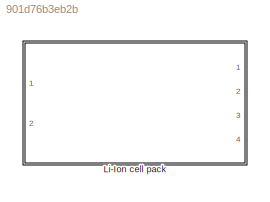
MODEL slx_901d76b3eb2b
KIND library
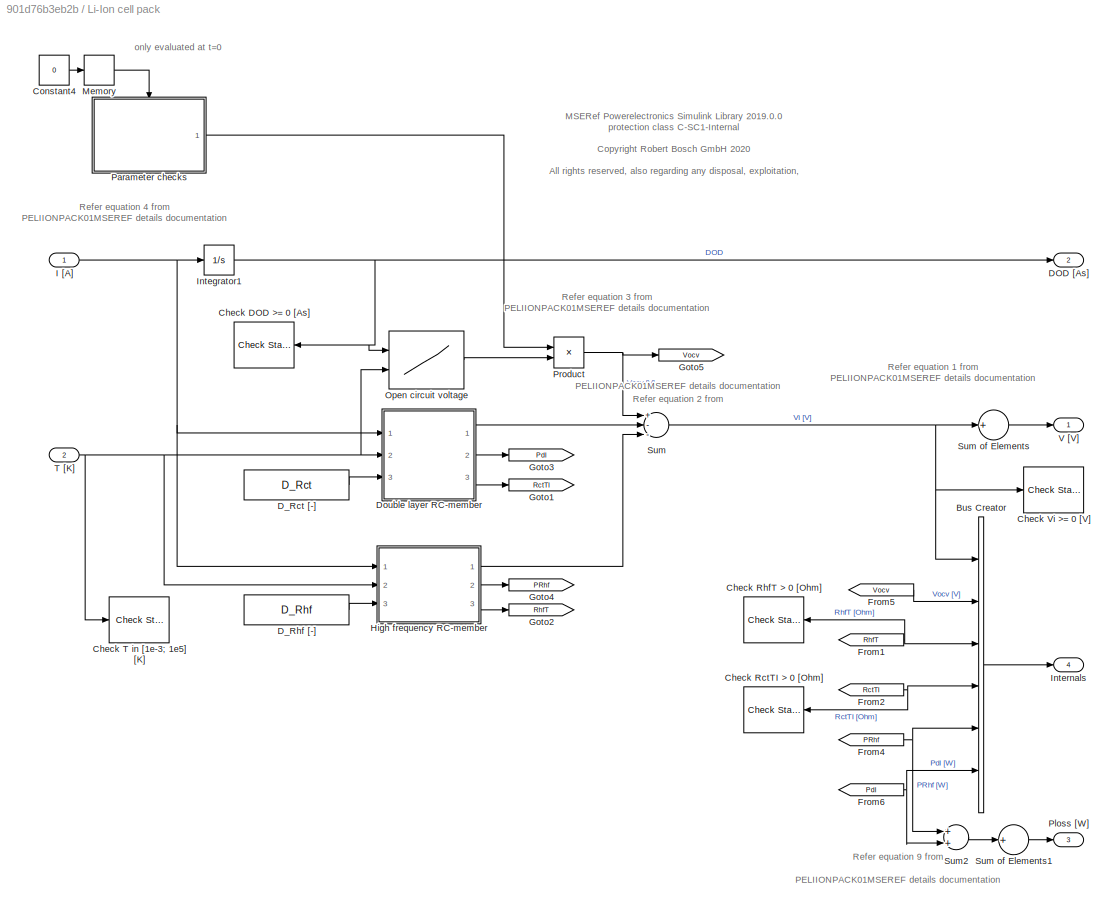
BLOCK [SubSystem] Li-Ion cell pack
  AttributesFormatString = <%<Tag>>
  Ports = [2, 4]
  RequestExecContextInheritance = off
  Tag = PELIIONPACK01MSEREF
BLOCK [BusCreator] Li-Ion cell pack/Bus Creator
  DisplayOption = bar
  Inputs = 6
  Ports = [6, 1]
BLOCK [Reference] Li-Ion cell pack/Check DOD >= 0 [As]  REF=simulink/Model
Verification/Check Static 
Lower Bound
  Description = 0 <= u
  Ports = [1]
  SourceBlock = simulink/Model\nVerification/Check Static \nLower Bound
  SourceType = Checks_SMin
  callback = errordlg('Output depth of discharge `DOD` has to be greater or equal to zero [As].')
  enabled = on
  export = off
  icon = graphic
  min = 0
  min_included = on
  stopWhenAssertionFail = on
BLOCK [Reference] Li-Ion cell pack/Check RctTI > 0 [Ohm]  REF=simulink/Model
Verification/Check Static 
Lower Bound
  Description = 0 <= u
  Ports = [1]
  SourceBlock = simulink/Model\nVerification/Check Static \nLower Bound
  SourceType = Checks_SMin
  callback = errordlg('Internal variable `RctTI` must have elements greater than zero [Ohm]. Possible reasons: Input port 3 `DeviVec`is unconnected, grounded or RhfT,i resp. RctTI,i is equal to zero.')
  enabled = on
  export = off
  icon = graphic
  min = 0
  min_included = on
  stopWhenAssertionFail = on
BLOCK [Reference] Li-Ion cell pack/Check RhfT > 0 [Ohm]  REF=simulink/Model
Verification/Check Static 
Lower Bound
  Description = 0 <= u
  Ports = [1]
  SourceBlock = simulink/Model\nVerification/Check Static \nLower Bound
  SourceType = Checks_SMin
  callback = errordlg('Internal variable `RhfT` must have elements greater than zero [Ohm]. Possible reasons: Input port 3 `DeviVec`is unconnected, grounded or RhfT,i resp. RctTI,i is equal to zero.')
  enabled = on
  export = off
  icon = graphic
  min = 0
  min_included = on
  stopWhenAssertionFail = on
BLOCK [Reference] Li-Ion cell pack/Check T in [1e-3; 1e5] [K]  REF=simulink/Model
Verification/Check 
Static Range
  Description = 1e-3 <= u <= 1e5
  Ports = [1]
  SourceBlock = simulink/Model\nVerification/Check \nStatic Range
  SourceType = Checks_SRange
  callback = errordlg('Input temperature `T` outside of range [1e-3; 1e5] [K].')
  enabled = on
  export = off
  icon = graphic
  max = 1e5
  max_included = on
  min = 1e-3
  min_included = on
  stopWhenAssertionFail = on
BLOCK [Reference] Li-Ion cell pack/Check Vi >= 0 [V]  REF=simulink/Model
Verification/Check Static 
Lower Bound
  Description = 0 <= u
  Ports = [1]
  SourceBlock = simulink/Model\nVerification/Check Static \nLower Bound
  SourceType = Checks_SMin
  callback = errordlg('Terminal voltage `Vi` has to be greater or equal to zero [V].')
  enabled = on
  export = off
  icon = graphic
  min = 0
  min_included = on
  stopWhenAssertionFail = on
BLOCK [Constant] Li-Ion cell pack/Constant4
  Value = 0
BLOCK [Outport] Li-Ion cell pack/DOD [As]
  IconDisplay = Port number
  Port = 2
BLOCK [Constant] Li-Ion cell pack/D_Rct [-]
  Value = D_Rct
BLOCK [Constant] Li-Ion cell pack/D_Rhf [-]
  Value = D_Rhf
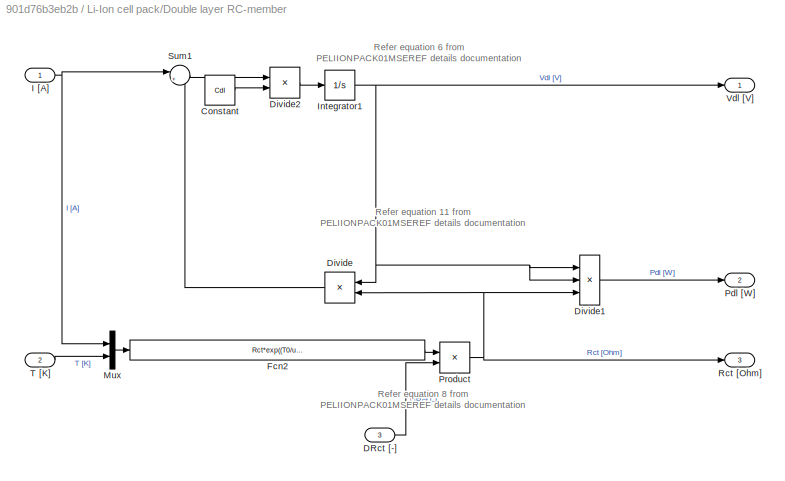
BLOCK [SubSystem] Li-Ion cell pack/Double layer RC-member
  Ports = [3, 3]
  RequestExecContextInheritance = off
BLOCK [Constant] Li-Ion cell pack/Double layer RC-member/Constant
  Value = Cdl
BLOCK [Inport] Li-Ion cell pack/Double layer RC-member/DRct [-]
  IconDisplay = Port number
  Port = 3
BLOCK [Product] Li-Ion cell pack/Double layer RC-member/Divide
  InputSameDT = off
  Inputs = */
  OutDataTypeStr = Inherit: Inherit via internal rule
  Ports = [2, 1]
  RndMeth = Floor
  SaturateOnIntegerOverflow = off
BLOCK [Product] Li-Ion cell pack/Double layer RC-member/Divide1
  InputSameDT = off
  Inputs = **/
  OutDataTypeStr = Inherit: Inherit via internal rule
  Ports = [3, 1]
  RndMeth = Floor
  SaturateOnIntegerOverflow = off
BLOCK [Product] Li-Ion cell pack/Double layer RC-member/Divide2
  InputSameDT = off
  Inputs = */
  OutDataTypeStr = Inherit: Inherit via internal rule
  Ports = [2, 1]
  RndMeth = Floor
  SaturateOnIntegerOverflow = off
BLOCK [Fcn] Li-Ion cell pack/Double layer RC-member/Fcn2
  Expr = Rct*exp((T0/u(2))-(T0/293.15))*(1+rho*(1+(u(1)/(I0))^2)^(-0.5))
BLOCK [Inport] Li-Ion cell pack/Double layer RC-member/I [A]
  IconDisplay = Port number
BLOCK [Integrator] Li-Ion cell pack/Double layer RC-member/Integrator1
  InitialCondition = Vdlinit
  Ports = [1, 1]
BLOCK [Mux] Li-Ion cell pack/Double layer RC-member/Mux
  DisplayOption = bar
  Inputs = 2
  Ports = [2, 1]
BLOCK [Outport] Li-Ion cell pack/Double layer RC-member/Pdl [W]
  IconDisplay = Port number
  Port = 2
BLOCK [Product] Li-Ion cell pack/Double layer RC-member/Product
  InputSameDT = off
  OutDataTypeStr = Inherit: Inherit via internal rule
  Ports = [2, 1]
  RndMeth = Floor
  SaturateOnIntegerOverflow = off
BLOCK [Outport] Li-Ion cell pack/Double layer RC-member/Rct [Ohm]
  IconDisplay = Port number
  Port = 3
BLOCK [Sum] Li-Ion cell pack/Double layer RC-member/Sum1
  IconShape = round
  InputSameDT = off
  Inputs = |+-
  OutDataTypeStr = Inherit: Inherit via internal rule
  Ports = [2, 1]
  SaturateOnIntegerOverflow = off
BLOCK [Inport] Li-Ion cell pack/Double layer RC-member/T [K]
  IconDisplay = Port number
  Port = 2
BLOCK [Outport] Li-Ion cell pack/Double layer RC-member/Vdl [V]
  IconDisplay = Port number
BLOCK [From] Li-Ion cell pack/From1
  CloseFcn = tagdialog Close
  GotoTag = RhfT
BLOCK [From] Li-Ion cell pack/From2
  CloseFcn = tagdialog Close
  GotoTag = RctTI
BLOCK [From] Li-Ion cell pack/From4
  CloseFcn = tagdialog Close
  GotoTag = PRhf
BLOCK [From] Li-Ion cell pack/From5
  CloseFcn = tagdialog Close
  GotoTag = Vocv
BLOCK [From] Li-Ion cell pack/From6
  CloseFcn = tagdialog Close
  GotoTag = Pdl
BLOCK [Goto] Li-Ion cell pack/Goto1
  GotoTag = RctTI
BLOCK [Goto] Li-Ion cell pack/Goto2
  GotoTag = RhfT
BLOCK [Goto] Li-Ion cell pack/Goto3
  GotoTag = Pdl
BLOCK [Goto] Li-Ion cell pack/Goto4
  GotoTag = PRhf
BLOCK [Goto] Li-Ion cell pack/Goto5
  GotoTag = Vocv
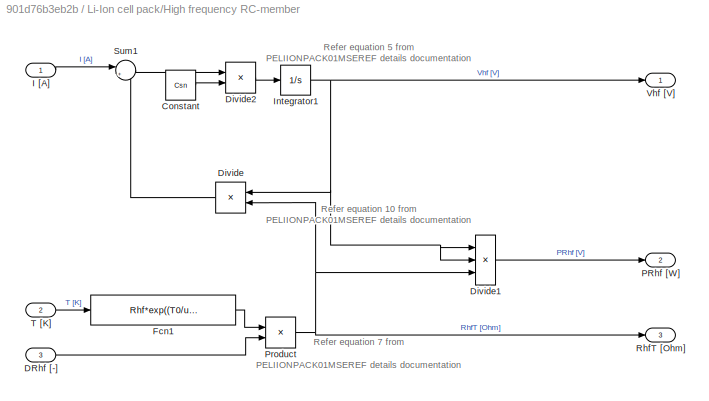
BLOCK [SubSystem] Li-Ion cell pack/High frequency RC-member
  Ports = [3, 3]
  RequestExecContextInheritance = off
BLOCK [Constant] Li-Ion cell pack/High frequency RC-member/Constant
  Value = Csn
BLOCK [Inport] Li-Ion cell pack/High frequency RC-member/DRhf [-]
  IconDisplay = Port number
  Port = 3
BLOCK [Product] Li-Ion cell pack/High frequency RC-member/Divide
  InputSameDT = off
  Inputs = */
  OutDataTypeStr = Inherit: Inherit via internal rule
  Ports = [2, 1]
  RndMeth = Floor
  SaturateOnIntegerOverflow = off
BLOCK [Product] Li-Ion cell pack/High frequency RC-member/Divide1
  InputSameDT = off
  Inputs = **/
  OutDataTypeStr = Inherit: Inherit via internal rule
  Ports = [3, 1]
  RndMeth = Floor
  SaturateOnIntegerOverflow = off
BLOCK [Product] Li-Ion cell pack/High frequency RC-member/Divide2
  InputSameDT = off
  Inputs = */
  OutDataTypeStr = Inherit: Inherit via internal rule
  Ports = [2, 1]
  RndMeth = Floor
  SaturateOnIntegerOverflow = off
BLOCK [Fcn] Li-Ion cell pack/High frequency RC-member/Fcn1
  Expr = Rhf*exp((T0/u(1))-(T0/293.15))
BLOCK [Inport] Li-Ion cell pack/High frequency RC-member/I [A]
  IconDisplay = Port number
BLOCK [Integrator] Li-Ion cell pack/High frequency RC-member/Integrator1
  InitialCondition = VRhfinit
  Ports = [1, 1]
BLOCK [Outport] Li-Ion cell pack/High frequency RC-member/PRhf [W]
  IconDisplay = Port number
  Port = 2
BLOCK [Product] Li-Ion cell pack/High frequency RC-member/Product
  InputSameDT = off
  OutDataTypeStr = Inherit: Inherit via internal rule
  Ports = [2, 1]
  RndMeth = Floor
  SaturateOnIntegerOverflow = off
BLOCK [Outport] Li-Ion cell pack/High frequency RC-member/RhfT [Ohm]
  IconDisplay = Port number
  Port = 3
BLOCK [Sum] Li-Ion cell pack/High frequency RC-member/Sum1
  IconShape = round
  InputSameDT = off
  Inputs = |+-
  OutDataTypeStr = Inherit: Inherit via internal rule
  Ports = [2, 1]
  SaturateOnIntegerOverflow = off
BLOCK [Inport] Li-Ion cell pack/High frequency RC-member/T [K]
  IconDisplay = Port number
  Port = 2
BLOCK [Outport] Li-Ion cell pack/High frequency RC-member/Vhf [V]
  IconDisplay = Port number
BLOCK [Inport] Li-Ion cell pack/I [A]
  IconDisplay = Port number
BLOCK [Integrator] Li-Ion cell pack/Integrator1
  InitialCondition = DODinit
  Ports = [1, 1]
BLOCK [Outport] Li-Ion cell pack/Internals
  IconDisplay = Port number
  Port = 4
BLOCK [Memory] Li-Ion cell pack/Memory
  X0 = 1
BLOCK [Lookup2D] Li-Ion cell pack/Open circuit voltage
  ColumnIndex = Ttab
  InputSameDT = off
  LookUpMeth = Interpolation-Use End Values
  RowIndex = DODtab
  SaturateOnIntegerOverflow = off
  Table = Vocvtab
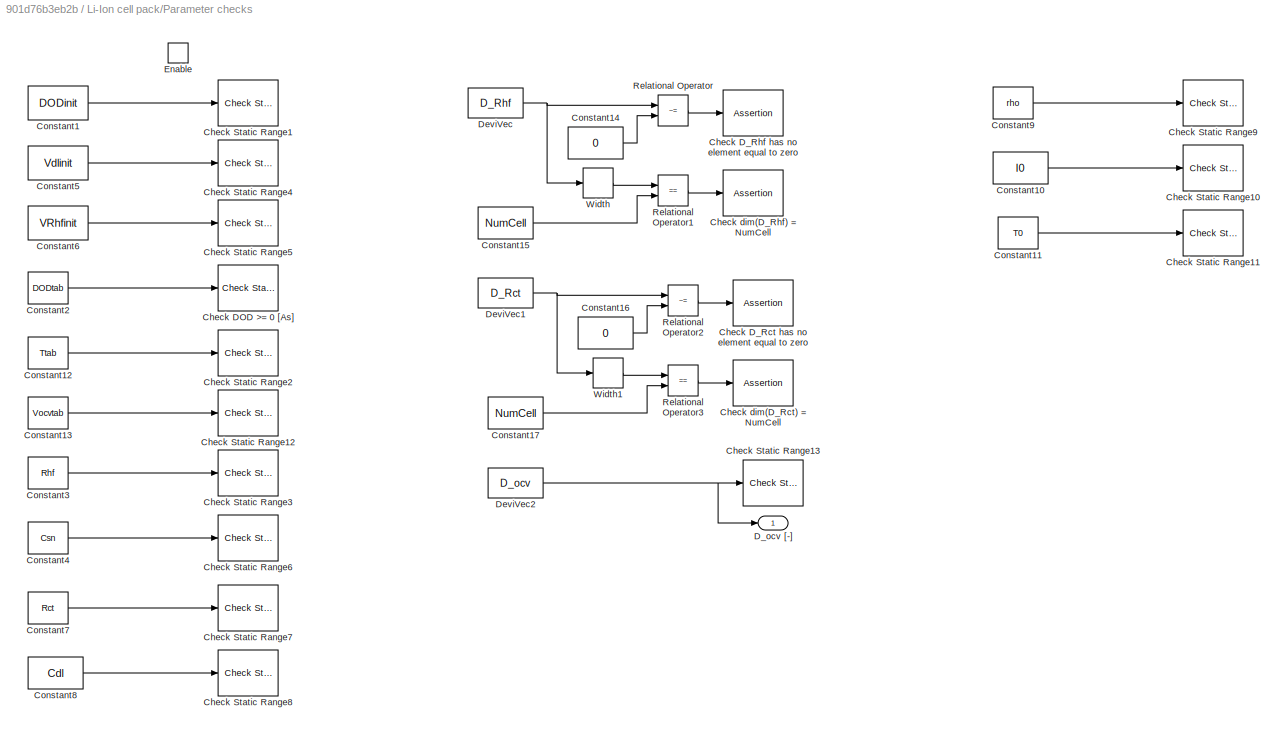
BLOCK [SubSystem] Li-Ion cell pack/Parameter checks
  Ports = [0, 1, 1]
  RequestExecContextInheritance = off
BLOCK [Reference] Li-Ion cell pack/Parameter checks/Check DOD >= 0 [As]  REF=simulink/Model
Verification/Check Static 
Lower Bound
  Description = 0 <= u
  Ports = [1]
  SourceBlock = simulink/Model\nVerification/Check Static \nLower Bound
  SourceType = Checks_SMin
  callback = errordlg('Parameter Vocv table DOD-axis `DODtab` must have all elements greater or equal to zero [As].')
  enabled = on
  export = off
  icon = graphic
  min = 0
  min_included = on
  stopWhenAssertionFail = on
BLOCK [Assertion] Li-Ion cell pack/Parameter checks/Check D_Rct has no element equal to zero
  AssertionFailFcn = errordlg('Parameter `Rct deviation vector` R_ct has elements equal to 0.')
BLOCK [Assertion] Li-Ion cell pack/Parameter checks/Check D_Rhf has no element equal to zero
  AssertionFailFcn = errordlg('Parameter `Rhf deviation vector` R_hf has elements equal to 0.')
BLOCK [Reference] Li-Ion cell pack/Parameter checks/Check Static Range1  REF=simulink/Model
Verification/Check 
Static Range
  Description = 0 <= u <= 1e5
  Ports = [1]
  SourceBlock = simulink/Model\nVerification/Check \nStatic Range
  SourceType = Checks_SRange
  callback = errordlg('Parameter `Initial depth of discharge` DODinit outside boundary [0, 1e5] As.')
  enabled = on
  export = off
  icon = graphic
  max = 1e5
  max_included = on
  min = 0
  min_included = on
  stopWhenAssertionFail = on
BLOCK [Reference] Li-Ion cell pack/Parameter checks/Check Static Range10  REF=simulink/Model
Verification/Check 
Static Range
  Description = 0 <= u <= 1e9
  Ports = [1]
  SourceBlock = simulink/Model\nVerification/Check \nStatic Range
  SourceType = Checks_SRange
  callback = errordlg('Parameter `Scale factor for current dependency` I0 outside boundary ]0, 1e9] A.')
  enabled = on
  export = off
  icon = graphic
  max = 1e9
  max_included = on
  min = 0
  min_included = on
  stopWhenAssertionFail = on
BLOCK [Reference] Li-Ion cell pack/Parameter checks/Check Static Range11  REF=simulink/Model
Verification/Check 
Static Range
  Description = 0 <= u <= 1e9
  Ports = [1]
  SourceBlock = simulink/Model\nVerification/Check \nStatic Range
  SourceType = Checks_SRange
  callback = errordlg('Parameter `Scale factor for temperature dependency` T0 outside boundary [0, 1e9] K.')
  enabled = on
  export = off
  icon = graphic
  max = 1e9
  max_included = on
  min = 0
  min_included = on
  stopWhenAssertionFail = on
BLOCK [Reference] Li-Ion cell pack/Parameter checks/Check Static Range12  REF=simulink/Model
Verification/Check 
Static Range
  Description = 0 <= u <= 1e9
  Ports = [1]
  SourceBlock = simulink/Model\nVerification/Check \nStatic Range
  SourceType = Checks_SRange
  callback = errordlg('Parameter `Vocv table` Vocvtab has elements outside boundary [0, 1e9] K.')
  enabled = on
  export = off
  icon = graphic
  max = 1e9
  max_included = on
  min = 0
  min_included = on
  stopWhenAssertionFail = on
BLOCK [Reference] Li-Ion cell pack/Parameter checks/Check Static Range13  REF=simulink/Model
Verification/Check 
Static Range
  Description = 0 <= u <= 1e9
  Ports = [1]
  SourceBlock = simulink/Model\nVerification/Check \nStatic Range
  SourceType = Checks_SRange
  callback = errordlg('Parameter `Vocv deviation vector` D_ocv not in the range [0, 1e9].')
  enabled = on
  export = off
  icon = graphic
  max = 1e9
  max_included = on
  min = 0
  min_included = on
  stopWhenAssertionFail = on
BLOCK [Reference] Li-Ion cell pack/Parameter checks/Check Static Range2  REF=simulink/Model
Verification/Check 
Static Range
  Description = 0 < u <= 1e9
  Ports = [1]
  SourceBlock = simulink/Model\nVerification/Check \nStatic Range
  SourceType = Checks_SRange
  callback = errordlg('Parameter `Vocv table T-axis` Ttab has elements outside boundary ]0, 1e9] K.')
  enabled = on
  export = off
  icon = graphic
  max = 1e9
  max_included = on
  min = 0
  min_included = off
  stopWhenAssertionFail = on
BLOCK [Reference] Li-Ion cell pack/Parameter checks/Check Static Range3  REF=simulink/Model
Verification/Check 
Static Range
  Description = 0 < u <= 1e9
  Ports = [1]
  SourceBlock = simulink/Model\nVerification/Check \nStatic Range
  SourceType = Checks_SRange
  callback = errordlg('Parameter `High frequency resistance` Rhf outside boundary ]0, 1e9] Ohm.')
  enabled = on
  export = off
  icon = graphic
  max = 1e9
  max_included = on
  min = 0
  min_included = off
  stopWhenAssertionFail = on
BLOCK [Reference] Li-Ion cell pack/Parameter checks/Check Static Range4  REF=simulink/Model
Verification/Check 
Static Range
  Description = -1e9 <= u <= 1e9
  Ports = [1]
  SourceBlock = simulink/Model\nVerification/Check \nStatic Range
  SourceType = Checks_SRange
  callback = errordlg('Parameter `Initial double layer voltage` Vdlinit outside boundary [-1e9, 1e9] V.')
  enabled = on
  export = off
  icon = graphic
  max = 1e9
  max_included = on
  min = -1e9
  min_included = on
  stopWhenAssertionFail = on
BLOCK [Reference] Li-Ion cell pack/Parameter checks/Check Static Range5  REF=simulink/Model
Verification/Check 
Static Range
  Description = -1e9 <= u <= 1e9
  Ports = [1]
  SourceBlock = simulink/Model\nVerification/Check \nStatic Range
  SourceType = Checks_SRange
  callback = errordlg('Parameter `Initial high frequency resistor voltage` VRhfinit outside boundary [-1e9, 1e9] V.')
  enabled = on
  export = off
  icon = graphic
  max = 1e9
  max_included = on
  min = -1e9
  min_included = on
  stopWhenAssertionFail = on
BLOCK [Reference] Li-Ion cell pack/Parameter checks/Check Static Range6  REF=simulink/Model
Verification/Check 
Static Range
  Description = 0 < u <= 1e9
  Ports = [1]
  SourceBlock = simulink/Model\nVerification/Check \nStatic Range
  SourceType = Checks_SRange
  callback = errordlg('Parameter `Snubber capacitance` Csn outside boundary ]0, 1e9] F.')
  enabled = on
  export = off
  icon = graphic
  max = 1e9
  max_included = on
  min = 0
  min_included = off
  stopWhenAssertionFail = on
BLOCK [Reference] Li-Ion cell pack/Parameter checks/Check Static Range7  REF=simulink/Model
Verification/Check 
Static Range
  Description = 0 < u <= 1e9
  Ports = [1]
  SourceBlock = simulink/Model\nVerification/Check \nStatic Range
  SourceType = Checks_SRange
  callback = errordlg('Parameter `Charge transfer resistance` Rct outside boundary ]0, 1e9] Ohm.')
  enabled = on
  export = off
  icon = graphic
  max = 1e9
  max_included = on
  min = 0
  min_included = off
  stopWhenAssertionFail = on
BLOCK [Reference] Li-Ion cell pack/Parameter checks/Check Static Range8  REF=simulink/Model
Verification/Check 
Static Range
  Description = 0 < u <= 1e9
  Ports = [1]
  SourceBlock = simulink/Model\nVerification/Check \nStatic Range
  SourceType = Checks_SRange
  callback = errordlg('Parameter `Double layer capacitance` Cdl outside boundary ]0, 1e9] F.')
  enabled = on
  export = off
  icon = graphic
  max = 1e9
  max_included = on
  min = 0
  min_included = off
  stopWhenAssertionFail = on
BLOCK [Reference] Li-Ion cell pack/Parameter checks/Check Static Range9  REF=simulink/Model
Verification/Check 
Static Range
  Description = 0 <= u <= 1e9
  Ports = [1]
  SourceBlock = simulink/Model\nVerification/Check \nStatic Range
  SourceType = Checks_SRange
  callback = errordlg('Parameter `Weighting factor for current dependency` rho outside boundary [0, 1e9] .')
  enabled = on
  export = off
  icon = graphic
  max = 1e9
  max_included = on
  min = 0
  min_included = on
  stopWhenAssertionFail = on
BLOCK [Assertion] Li-Ion cell pack/Parameter checks/Check dim(D_Rct) = NumCell
  AssertionFailFcn = errordlg('Parameter `Rhf deviation vector` D_Rct has a dimension not equal to NumCell.')
BLOCK [Assertion] Li-Ion cell pack/Parameter checks/Check dim(D_Rhf) = NumCell
  AssertionFailFcn = errordlg('Parameter `Rhf deviation vector` D_Rhf has a dimension not equal to NumCell.')
BLOCK [Constant] Li-Ion cell pack/Parameter checks/Constant1
  Value = DODinit
BLOCK [Constant] Li-Ion cell pack/Parameter checks/Constant10
  Value = I0
BLOCK [Constant] Li-Ion cell pack/Parameter checks/Constant11
  Value = T0
BLOCK [Constant] Li-Ion cell pack/Parameter checks/Constant12
  Value = Ttab
BLOCK [Constant] Li-Ion cell pack/Parameter checks/Constant13
  Value = Vocvtab
BLOCK [Constant] Li-Ion cell pack/Parameter checks/Constant14
  Value = 0
BLOCK [Constant] Li-Ion cell pack/Parameter checks/Constant15
  Value = NumCell
BLOCK [Constant] Li-Ion cell pack/Parameter checks/Constant16
  Value = 0
BLOCK [Constant] Li-Ion cell pack/Parameter checks/Constant17
  Value = NumCell
BLOCK [Constant] Li-Ion cell pack/Parameter checks/Constant2
  Value = DODtab
BLOCK [Constant] Li-Ion cell pack/Parameter checks/Constant3
  Value = Rhf
BLOCK [Constant] Li-Ion cell pack/Parameter checks/Constant4
  Value = Csn
BLOCK [Constant] Li-Ion cell pack/Parameter checks/Constant5
  Value = Vdlinit
BLOCK [Constant] Li-Ion cell pack/Parameter checks/Constant6
  Value = VRhfinit
BLOCK [Constant] Li-Ion cell pack/Parameter checks/Constant7
  Value = Rct
BLOCK [Constant] Li-Ion cell pack/Parameter checks/Constant8
  Value = Cdl
BLOCK [Constant] Li-Ion cell pack/Parameter checks/Constant9
  Value = rho
BLOCK [Outport] Li-Ion cell pack/Parameter checks/D_ocv [-]
  IconDisplay = Port number
BLOCK [Constant] Li-Ion cell pack/Parameter checks/DeviVec
  Value = D_Rhf
BLOCK [Constant] Li-Ion cell pack/Parameter checks/DeviVec1
  Value = D_Rct
BLOCK [Constant] Li-Ion cell pack/Parameter checks/DeviVec2
  Value = D_ocv
BLOCK [EnablePort] Li-Ion cell pack/Parameter checks/Enable
  Ports = []
  ZeroCross = off
BLOCK [RelationalOperator] Li-Ion cell pack/Parameter checks/Relational Operator
  InputSameDT = off
  Operator = ~=
  OutDataTypeStr = boolean
  Ports = [2, 1]
BLOCK [RelationalOperator] Li-Ion cell pack/Parameter checks/Relational Operator1
  InputSameDT = off
  Operator = ==
  OutDataTypeStr = boolean
  Ports = [2, 1]
BLOCK [RelationalOperator] Li-Ion cell pack/Parameter checks/Relational Operator2
  InputSameDT = off
  Operator = ~=
  OutDataTypeStr = boolean
  Ports = [2, 1]
BLOCK [RelationalOperator] Li-Ion cell pack/Parameter checks/Relational Operator3
  InputSameDT = off
  Operator = ==
  OutDataTypeStr = boolean
  Ports = [2, 1]
BLOCK [Width] Li-Ion cell pack/Parameter checks/Width
BLOCK [Width] Li-Ion cell pack/Parameter checks/Width1
BLOCK [Outport] Li-Ion cell pack/Ploss [W]
  IconDisplay = Port number
  Port = 3
BLOCK [Product] Li-Ion cell pack/Product
  InputSameDT = off
  OutDataTypeStr = Inherit: Inherit via internal rule
  Ports = [2, 1]
  RndMeth = Floor
  SaturateOnIntegerOverflow = off
BLOCK [Sum] Li-Ion cell pack/Sum
  InputSameDT = off
  Inputs = +--
  OutDataTypeStr = Inherit: Inherit via internal rule
  Ports = [3, 1]
  SaturateOnIntegerOverflow = off
BLOCK [Sum] Li-Ion cell pack/Sum of Elements
  InputSameDT = off
  Inputs = +
  OutDataTypeStr = Inherit: Inherit via internal rule
  Ports = [1, 1]
  SaturateOnIntegerOverflow = off
BLOCK [Sum] Li-Ion cell pack/Sum of Elements1
  InputSameDT = off
  Inputs = +
  OutDataTypeStr = Inherit: Inherit via internal rule
  Ports = [1, 1]
  SaturateOnIntegerOverflow = off
BLOCK [Sum] Li-Ion cell pack/Sum2
  InputSameDT = off
  OutDataTypeStr = Inherit: Inherit via internal rule
  Ports = [2, 1]
  SaturateOnIntegerOverflow = off
BLOCK [Inport] Li-Ion cell pack/T [K]
  IconDisplay = Port number
  Port = 2
BLOCK [Outport] Li-Ion cell pack/V [V]
  IconDisplay = Port number
ANNOTATION Li-Ion cell pack: MSERef Powerelectronics Simulink Library 2019.0.0 protection class C-SC1-Internal <copyright redacted>
ANNOTATION Li-Ion cell pack: Refer equation 1 from PELIIONPACK01MSEREF details documentation
ANNOTATION Li-Ion cell pack: Refer equation 2 from PELIIONPACK01MSEREF details documentation
ANNOTATION Li-Ion cell pack: Refer equation 3 from PELIIONPACK01MSEREF details documentation
ANNOTATION Li-Ion cell pack: Refer equation 4 from PELIIONPACK01MSEREF details documentation
ANNOTATION Li-Ion cell pack: Refer equation 9 from PELIIONPACK01MSEREF details documentation
ANNOTATION Li-Ion cell pack: only evaluated at t=0
ANNOTATION Li-Ion cell pack/Double layer RC-member: Refer equation 11 from PELIIONPACK01MSEREF details documentation
ANNOTATION Li-Ion cell pack/Double layer RC-member: Refer equation 6 from PELIIONPACK01MSEREF details documentation
ANNOTATION Li-Ion cell pack/Double layer RC-member: Refer equation 8 from PELIIONPACK01MSEREF details documentation
ANNOTATION Li-Ion cell pack/High frequency RC-member: Refer equation 10 from PELIIONPACK01MSEREF details documentation
ANNOTATION Li-Ion cell pack/High frequency RC-member: Refer equation 5 from PELIIONPACK01MSEREF details documentation
ANNOTATION Li-Ion cell pack/High frequency RC-member: Refer equation 7 from PELIIONPACK01MSEREF details documentation
LINE Li-Ion cell pack/Bus Creator:1 -> Li-Ion cell pack/Internals:1
LINE Li-Ion cell pack/Constant4:1 -> Li-Ion cell pack/Memory:1
LINE Li-Ion cell pack/D_Rct [-]:1 -> Li-Ion cell pack/Double layer RC-member:3
LINE Li-Ion cell pack/D_Rhf [-]:1 -> Li-Ion cell pack/High frequency RC-member:3
LINE Li-Ion cell pack/Double layer RC-member/Constant:1 -> Li-Ion cell pack/Double layer RC-member/Divide2:2
LINE Li-Ion cell pack/Double layer RC-member/DRct [-]:1 -> Li-Ion cell pack/Double layer RC-member/Product:2
LINE Li-Ion cell pack/Double layer RC-member/Divide1:1 -> Li-Ion cell pack/Double layer RC-member/Pdl [W]:1
LINE Li-Ion cell pack/Double layer RC-member/Divide2:1 -> Li-Ion cell pack/Double layer RC-member/Integrator1:1
LINE Li-Ion cell pack/Double layer RC-member/Divide:1 -> Li-Ion cell pack/Double layer RC-member/Sum1:2
LINE Li-Ion cell pack/Double layer RC-member/Fcn2:1 -> Li-Ion cell pack/Double layer RC-member/Product:1
NET Li-Ion cell pack/Double layer RC-member/I [A]:1 -> Li-Ion cell pack/Double layer RC-member/Mux:1, Li-Ion cell pack/Double layer RC-member/Sum1:1
NET Li-Ion cell pack/Double layer RC-member/Integrator1:1 -> Li-Ion cell pack/Double layer RC-member/Divide1:1, Li-Ion cell pack/Double layer RC-member/Divide1:2, Li-Ion cell pack/Double layer RC-member/Divide:1, Li-Ion cell pack/Double layer RC-member/Vdl [V]:1
LINE Li-Ion cell pack/Double layer RC-member/Mux:1 -> Li-Ion cell pack/Double layer RC-member/Fcn2:1
NET Li-Ion cell pack/Double layer RC-member/Product:1 -> Li-Ion cell pack/Double layer RC-member/Divide1:3, Li-Ion cell pack/Double layer RC-member/Divide:2, Li-Ion cell pack/Double layer RC-member/Rct [Ohm]:1
LINE Li-Ion cell pack/Double layer RC-member/Sum1:1 -> Li-Ion cell pack/Double layer RC-member/Divide2:1
LINE Li-Ion cell pack/Double layer RC-member/T [K]:1 -> Li-Ion cell pack/Double layer RC-member/Mux:2
LINE Li-Ion cell pack/Double layer RC-member:1 -> Li-Ion cell pack/Sum:2
LINE Li-Ion cell pack/Double layer RC-member:2 -> Li-Ion cell pack/Goto3:1
LINE Li-Ion cell pack/Double layer RC-member:3 -> Li-Ion cell pack/Goto1:1
NET Li-Ion cell pack/From1:1 -> Li-Ion cell pack/Bus Creator:3, Li-Ion cell pack/Check RhfT > 0 [Ohm]:1
NET Li-Ion cell pack/From2:1 -> Li-Ion cell pack/Bus Creator:4, Li-Ion cell pack/Check RctTI > 0 [Ohm]:1
NET Li-Ion cell pack/From4:1 -> Li-Ion cell pack/Bus Creator:5, Li-Ion cell pack/Sum2:1
LINE Li-Ion cell pack/From5:1 -> Li-Ion cell pack/Bus Creator:2
NET Li-Ion cell pack/From6:1 -> Li-Ion cell pack/Bus Creator:6, Li-Ion cell pack/Sum2:2
LINE Li-Ion cell pack/High frequency RC-member/Constant:1 -> Li-Ion cell pack/High frequency RC-member/Divide2:2
LINE Li-Ion cell pack/High frequency RC-member/DRhf [-]:1 -> Li-Ion cell pack/High frequency RC-member/Product:2
LINE Li-Ion cell pack/High frequency RC-member/Divide1:1 -> Li-Ion cell pack/High frequency RC-member/PRhf [W]:1
LINE Li-Ion cell pack/High frequency RC-member/Divide2:1 -> Li-Ion cell pack/High frequency RC-member/Integrator1:1
LINE Li-Ion cell pack/High frequency RC-member/Divide:1 -> Li-Ion cell pack/High frequency RC-member/Sum1:2
LINE Li-Ion cell pack/High frequency RC-member/Fcn1:1 -> Li-Ion cell pack/High frequency RC-member/Product:1
LINE Li-Ion cell pack/High frequency RC-member/I [A]:1 -> Li-Ion cell pack/High frequency RC-member/Sum1:1
NET Li-Ion cell pack/High frequency RC-member/Integrator1:1 -> Li-Ion cell pack/High frequency RC-member/Divide1:1, Li-Ion cell pack/High frequency RC-member/Divide1:2, Li-Ion cell pack/High frequency RC-member/Divide:1, Li-Ion cell pack/High frequency RC-member/Vhf [V]:1
NET Li-Ion cell pack/High frequency RC-member/Product:1 -> Li-Ion cell pack/High frequency RC-member/Divide1:3, Li-Ion cell pack/High frequency RC-member/Divide:2, Li-Ion cell pack/High frequency RC-member/RhfT [Ohm]:1
LINE Li-Ion cell pack/High frequency RC-member/Sum1:1 -> Li-Ion cell pack/High frequency RC-member/Divide2:1
LINE Li-Ion cell pack/High frequency RC-member/T [K]:1 -> Li-Ion cell pack/High frequency RC-member/Fcn1:1
LINE Li-Ion cell pack/High frequency RC-member:1 -> Li-Ion cell pack/Sum:3
LINE Li-Ion cell pack/High frequency RC-member:2 -> Li-Ion cell pack/Goto4:1
LINE Li-Ion cell pack/High frequency RC-member:3 -> Li-Ion cell pack/Goto2:1
NET Li-Ion cell pack/I [A]:1 -> Li-Ion cell pack/Double layer RC-member:1, Li-Ion cell pack/High frequency RC-member:1, Li-Ion cell pack/Integrator1:1
NET Li-Ion cell pack/Integrator1:1 -> Li-Ion cell pack/Check DOD >= 0 [As]:1, Li-Ion cell pack/DOD [As]:1, Li-Ion cell pack/Open circuit voltage:1
LINE Li-Ion cell pack/Memory:1 -> Li-Ion cell pack/Parameter checks:enable
LINE Li-Ion cell pack/Open circuit voltage:1 -> Li-Ion cell pack/Product:2
LINE Li-Ion cell pack/Parameter checks/Constant10:1 -> Li-Ion cell pack/Parameter checks/Check Static Range10:1
LINE Li-Ion cell pack/Parameter checks/Constant11:1 -> Li-Ion cell pack/Parameter checks/Check Static Range11:1
LINE Li-Ion cell pack/Parameter checks/Constant12:1 -> Li-Ion cell pack/Parameter checks/Check Static Range2:1
LINE Li-Ion cell pack/Parameter checks/Constant13:1 -> Li-Ion cell pack/Parameter checks/Check Static Range12:1
LINE Li-Ion cell pack/Parameter checks/Constant14:1 -> Li-Ion cell pack/Parameter checks/Relational Operator:2
LINE Li-Ion cell pack/Parameter checks/Constant15:1 -> Li-Ion cell pack/Parameter checks/Relational Operator1:2
LINE Li-Ion cell pack/Parameter checks/Constant16:1 -> Li-Ion cell pack/Parameter checks/Relational Operator2:2
LINE Li-Ion cell pack/Parameter checks/Constant17:1 -> Li-Ion cell pack/Parameter checks/Relational Operator3:2
LINE Li-Ion cell pack/Parameter checks/Constant1:1 -> Li-Ion cell pack/Parameter checks/Check Static Range1:1
LINE Li-Ion cell pack/Parameter checks/Constant2:1 -> Li-Ion cell pack/Parameter checks/Check DOD >= 0 [As]:1
LINE Li-Ion cell pack/Parameter checks/Constant3:1 -> Li-Ion cell pack/Parameter checks/Check Static Range3:1
LINE Li-Ion cell pack/Parameter checks/Constant4:1 -> Li-Ion cell pack/Parameter checks/Check Static Range6:1
LINE Li-Ion cell pack/Parameter checks/Constant5:1 -> Li-Ion cell pack/Parameter checks/Check Static Range4:1
LINE Li-Ion cell pack/Parameter checks/Constant6:1 -> Li-Ion cell pack/Parameter checks/Check Static Range5:1
LINE Li-Ion cell pack/Parameter checks/Constant7:1 -> Li-Ion cell pack/Parameter checks/Check Static Range7:1
LINE Li-Ion cell pack/Parameter checks/Constant8:1 -> Li-Ion cell pack/Parameter checks/Check Static Range8:1
LINE Li-Ion cell pack/Parameter checks/Constant9:1 -> Li-Ion cell pack/Parameter checks/Check Static Range9:1
NET Li-Ion cell pack/Parameter checks/DeviVec1:1 -> Li-Ion cell pack/Parameter checks/Relational Operator2:1, Li-Ion cell pack/Parameter checks/Width1:1
NET Li-Ion cell pack/Parameter checks/DeviVec2:1 -> Li-Ion cell pack/Parameter checks/Check Static Range13:1, Li-Ion cell pack/Parameter checks/D_ocv [-]:1
NET Li-Ion cell pack/Parameter checks/DeviVec:1 -> Li-Ion cell pack/Parameter checks/Relational Operator:1, Li-Ion cell pack/Parameter checks/Width:1
LINE Li-Ion cell pack/Parameter checks/Relational Operator1:1 -> Li-Ion cell pack/Parameter checks/Check dim(D_Rhf) = NumCell:1
LINE Li-Ion cell pack/Parameter checks/Relational Operator2:1 -> Li-Ion cell pack/Parameter checks/Check D_Rct has no element equal to zero:1
LINE Li-Ion cell pack/Parameter checks/Relational Operator3:1 -> Li-Ion cell pack/Parameter checks/Check dim(D_Rct) = NumCell:1
LINE Li-Ion cell pack/Parameter checks/Relational Operator:1 -> Li-Ion cell pack/Parameter checks/Check D_Rhf has no element equal to zero:1
LINE Li-Ion cell pack/Parameter checks/Width1:1 -> Li-Ion cell pack/Parameter checks/Relational Operator3:1
LINE Li-Ion cell pack/Parameter checks/Width:1 -> Li-Ion cell pack/Parameter checks/Relational Operator1:1
LINE Li-Ion cell pack/Parameter checks:1 -> Li-Ion cell pack/Product:1
NET Li-Ion cell pack/Product:1 -> Li-Ion cell pack/Goto5:1, Li-Ion cell pack/Sum:1
LINE Li-Ion cell pack/Sum of Elements1:1 -> Li-Ion cell pack/Ploss [W]:1
LINE Li-Ion cell pack/Sum of Elements:1 -> Li-Ion cell pack/V [V]:1
LINE Li-Ion cell pack/Sum2:1 -> Li-Ion cell pack/Sum of Elements1:1
NET Li-Ion cell pack/Sum:1 -> Li-Ion cell pack/Bus Creator:1, Li-Ion cell pack/Check Vi >= 0 [V]:1, Li-Ion cell pack/Sum of Elements:1
NET Li-Ion cell pack/T [K]:1 -> Li-Ion cell pack/Check T in [1e-3; 1e5] [K]:1, Li-Ion cell pack/Double layer RC-member:2, Li-Ion cell pack/High frequency RC-member:2, Li-Ion cell pack/Open circuit voltage:2
note: NET lines group one-source signal fan-out (src -> all destinations, sorted); 1:1 wires keep LINE
